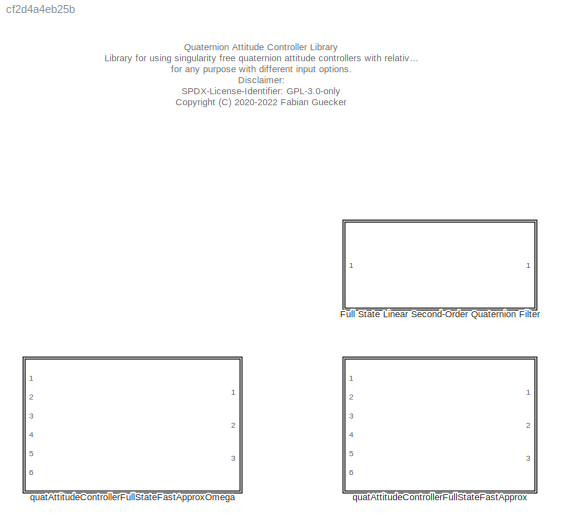
MODEL slx_cf2d4a4eb25b
KIND library
CONFIG AbsTol = auto
CONFIG EnableMultiTasking = off
CONFIG FixedStep = auto
CONFIG MaxStep = auto
CONFIG MinStep = auto
CONFIG RelTol = 1e-3
CONFIG SampleTimeConstraint = Unconstrained
CONFIG Solver = VariableStepAuto
CONFIG SolverName = VariableStepAuto
CONFIG StartTime = 0.0
CONFIG StopTime = 10.0
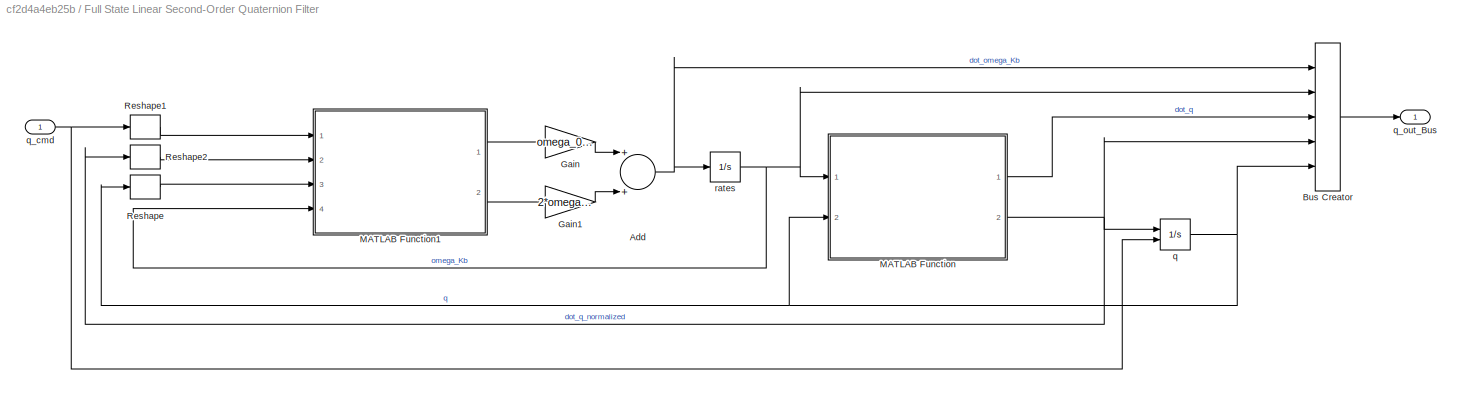
BLOCK [SubSystem] Full State Linear Second-Order Quaternion Filter
  Ports = [1, 1]
  RequestExecContextInheritance = off
BLOCK [Sum] Full State Linear Second-Order Quaternion Filter/Add
  InputSameDT = off
  OutDataTypeStr = Inherit: Inherit via internal rule
  Ports = [2, 1]
  SaturateOnIntegerOverflow = off
BLOCK [BusCreator] Full State Linear Second-Order Quaternion Filter/Bus Creator
  DisplayOption = bar
  InheritFromInputs = on
  Inputs = 5
  Ports = [5, 1]
BLOCK [Gain] Full State Linear Second-Order Quaternion Filter/Gain
  Gain = omega_0*omega_0
  OutDataTypeStr = Inherit: Inherit via internal rule
  ParamDataTypeStr = Inherit: Inherit via internal rule
  SaturateOnIntegerOverflow = off
BLOCK [Gain] Full State Linear Second-Order Quaternion Filter/Gain1
  Gain = 2*omega_0*D
  OutDataTypeStr = Inherit: Inherit via internal rule
  ParamDataTypeStr = Inherit: Inherit via internal rule
  SaturateOnIntegerOverflow = off
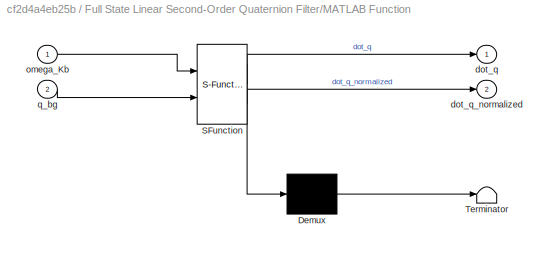
BLOCK [SubSystem] Full State Linear Second-Order Quaternion Filter/MATLAB Function
  ErrorFcn = Stateflow.Translate.translate
  PermitHierarchicalResolution = ExplicitOnly
  Ports = [2, 2]
  RequestExecContextInheritance = off
  SFBlockType = MATLAB Function
  TreatAsAtomicUnit = on
BLOCK [Demux] Full State Linear Second-Order Quaternion Filter/MATLAB Function/ Demux 
  Outputs = 1
  Ports = [1, 1]
BLOCK [S-Function] Full State Linear Second-Order Quaternion Filter/MATLAB Function/ SFunction 
  EnableBusSupport = off
  FunctionName = sf_sfun
  PortCounts = [2 3]
  Ports = [2, 3]
  SFcnIsStateOwnerBlock = off
  SFunctionDeploymentMode = off
  Tag = Stateflow S-Function quatAttitudeController_lib 8
BLOCK [Terminator] Full State Linear Second-Order Quaternion Filter/MATLAB Function/ Terminator 
BLOCK [Outport] Full State Linear Second-Order Quaternion Filter/MATLAB Function/dot_q
  IconDisplay = Port number
BLOCK [Outport] Full State Linear Second-Order Quaternion Filter/MATLAB Function/dot_q_normalized
  IconDisplay = Port number
  Port = 2
BLOCK [Inport] Full State Linear Second-Order Quaternion Filter/MATLAB Function/omega_Kb
  IconDisplay = Port number
BLOCK [Inport] Full State Linear Second-Order Quaternion Filter/MATLAB Function/q_bg
  IconDisplay = Port number
  Port = 2
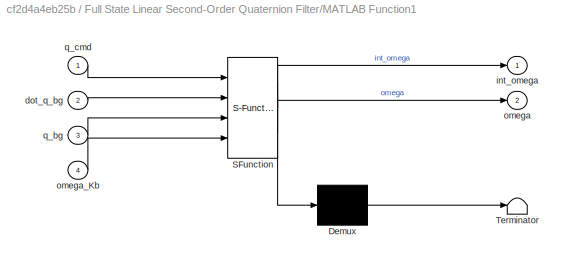
BLOCK [SubSystem] Full State Linear Second-Order Quaternion Filter/MATLAB Function1
  ErrorFcn = Stateflow.Translate.translate
  PermitHierarchicalResolution = ExplicitOnly
  Ports = [4, 2]
  RequestExecContextInheritance = off
  SFBlockType = MATLAB Function
  TreatAsAtomicUnit = on
BLOCK [Demux] Full State Linear Second-Order Quaternion Filter/MATLAB Function1/ Demux 
  Outputs = 1
  Ports = [1, 1]
BLOCK [S-Function] Full State Linear Second-Order Quaternion Filter/MATLAB Function1/ SFunction 
  EnableBusSupport = off
  FunctionName = sf_sfun
  PortCounts = [4 3]
  Ports = [4, 3]
  SFcnIsStateOwnerBlock = off
  SFunctionDeploymentMode = off
  Tag = Stateflow S-Function quatAttitudeController_lib 9
BLOCK [Terminator] Full State Linear Second-Order Quaternion Filter/MATLAB Function1/ Terminator 
BLOCK [Inport] Full State Linear Second-Order Quaternion Filter/MATLAB Function1/dot_q_bg
  IconDisplay = Port number
  Port = 2
BLOCK [Outport] Full State Linear Second-Order Quaternion Filter/MATLAB Function1/int_omega
  IconDisplay = Port number
BLOCK [Outport] Full State Linear Second-Order Quaternion Filter/MATLAB Function1/omega
  IconDisplay = Port number
  Port = 2
BLOCK [Inport] Full State Linear Second-Order Quaternion Filter/MATLAB Function1/omega_Kb
  IconDisplay = Port number
  Port = 4
BLOCK [Inport] Full State Linear Second-Order Quaternion Filter/MATLAB Function1/q_bg
  IconDisplay = Port number
  Port = 3
BLOCK [Inport] Full State Linear Second-Order Quaternion Filter/MATLAB Function1/q_cmd
  IconDisplay = Port number
BLOCK [Reshape] Full State Linear Second-Order Quaternion Filter/Reshape
  OutputDimensionality = Column vector (2-D)
  Ports = [1, 1]
BLOCK [Reshape] Full State Linear Second-Order Quaternion Filter/Reshape1
  OutputDimensionality = Column vector (2-D)
  Ports = [1, 1]
BLOCK [Reshape] Full State Linear Second-Order Quaternion Filter/Reshape2
  OutputDimensionality = Column vector (2-D)
  Ports = [1, 1]
BLOCK [Integrator] Full State Linear Second-Order Quaternion Filter/q
  ContinuousStateAttributes = 'quaternion'
  InitialCondition = q_0
  InitialConditionSource = external
  LowerSaturationLimit = [-inf;-inf;-inf]
  Ports = [2, 1]
  UpperSaturationLimit = [inf;inf;-quad.z_s]
BLOCK [Inport] Full State Linear Second-Order Quaternion Filter/q_cmd
  IconDisplay = Port number
BLOCK [Outport] Full State Linear Second-Order Quaternion Filter/q_out_Bus
  IconDisplay = Port number
BLOCK [Integrator] Full State Linear Second-Order Quaternion Filter/rates
  ContinuousStateAttributes = 'rates'
  InitialCondition = omega_Kb_0
  Ports = [1, 1]
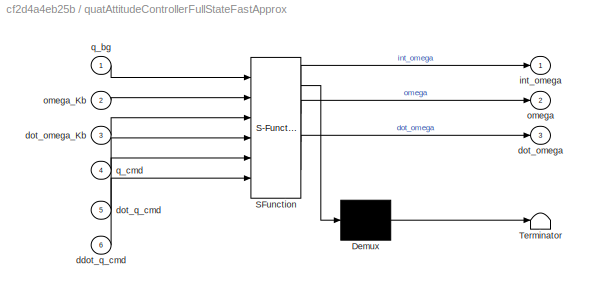
BLOCK [SubSystem] quatAttitudeControllerFullStateFastApprox
  ErrorFcn = Stateflow.Translate.translate
  PermitHierarchicalResolution = ExplicitOnly
  Ports = [6, 3]
  RequestExecContextInheritance = off
  SFBlockType = MATLAB Function
  TreatAsAtomicUnit = on
BLOCK [Demux] quatAttitudeControllerFullStateFastApprox/ Demux 
  Outputs = 1
  Ports = [1, 1]
BLOCK [S-Function] quatAttitudeControllerFullStateFastApprox/ SFunction 
  EnableBusSupport = off
  FunctionName = sf_sfun
  PortCounts = [6 4]
  Ports = [6, 4]
  SFcnIsStateOwnerBlock = off
  SFunctionDeploymentMode = off
  Tag = Stateflow S-Function quatAttitudeController_lib 6
BLOCK [Terminator] quatAttitudeControllerFullStateFastApprox/ Terminator 
BLOCK [Inport] quatAttitudeControllerFullStateFastApprox/ddot_q_cmd
  IconDisplay = Port number
  Port = 6
BLOCK [Outport] quatAttitudeControllerFullStateFastApprox/dot_omega
  IconDisplay = Port number
  Port = 3
BLOCK [Inport] quatAttitudeControllerFullStateFastApprox/dot_omega_Kb
  IconDisplay = Port number
  Port = 3
BLOCK [Inport] quatAttitudeControllerFullStateFastApprox/dot_q_cmd
  IconDisplay = Port number
  Port = 5
BLOCK [Outport] quatAttitudeControllerFullStateFastApprox/int_omega
  IconDisplay = Port number
BLOCK [Outport] quatAttitudeControllerFullStateFastApprox/omega
  IconDisplay = Port number
  Port = 2
BLOCK [Inport] quatAttitudeControllerFullStateFastApprox/omega_Kb
  IconDisplay = Port number
  Port = 2
BLOCK [Inport] quatAttitudeControllerFullStateFastApprox/q_bg
  IconDisplay = Port number
BLOCK [Inport] quatAttitudeControllerFullStateFastApprox/q_cmd
  IconDisplay = Port number
  Port = 4
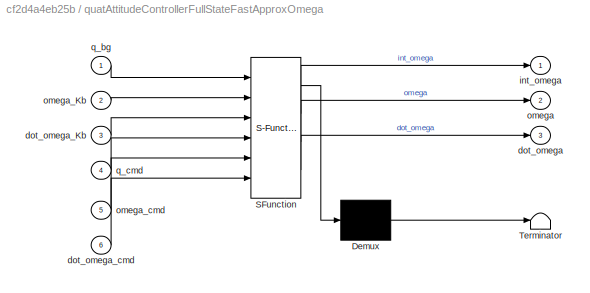
BLOCK [SubSystem] quatAttitudeControllerFullStateFastApproxOmega
  ErrorFcn = Stateflow.Translate.translate
  PermitHierarchicalResolution = ExplicitOnly
  Ports = [6, 3]
  RequestExecContextInheritance = off
  SFBlockType = MATLAB Function
  TreatAsAtomicUnit = on
BLOCK [Demux] quatAttitudeControllerFullStateFastApproxOmega/ Demux 
  Outputs = 1
  Ports = [1, 1]
BLOCK [S-Function] quatAttitudeControllerFullStateFastApproxOmega/ SFunction 
  EnableBusSupport = off
  FunctionName = sf_sfun
  PortCounts = [6 4]
  Ports = [6, 4]
  SFcnIsStateOwnerBlock = off
  SFunctionDeploymentMode = off
  Tag = Stateflow S-Function quatAttitudeController_lib 2
BLOCK [Terminator] quatAttitudeControllerFullStateFastApproxOmega/ Terminator 
BLOCK [Outport] quatAttitudeControllerFullStateFastApproxOmega/dot_omega
  IconDisplay = Port number
  Port = 3
BLOCK [Inport] quatAttitudeControllerFullStateFastApproxOmega/dot_omega_Kb
  IconDisplay = Port number
  Port = 3
BLOCK [Inport] quatAttitudeControllerFullStateFastApproxOmega/dot_omega_cmd
  IconDisplay = Port number
  Port = 6
BLOCK [Outport] quatAttitudeControllerFullStateFastApproxOmega/int_omega
  IconDisplay = Port number
BLOCK [Outport] quatAttitudeControllerFullStateFastApproxOmega/omega
  IconDisplay = Port number
  Port = 2
BLOCK [Inport] quatAttitudeControllerFullStateFastApproxOmega/omega_Kb
  IconDisplay = Port number
  Port = 2
BLOCK [Inport] quatAttitudeControllerFullStateFastApproxOmega/omega_cmd
  IconDisplay = Port number
  Port = 5
BLOCK [Inport] quatAttitudeControllerFullStateFastApproxOmega/q_bg
  IconDisplay = Port number
BLOCK [Inport] quatAttitudeControllerFullStateFastApproxOmega/q_cmd
  IconDisplay = Port number
  Port = 4
ANNOTATION (root): Quaternion Attitude Controller Library Library for using singularity free quaternion attitude controllers with relative degree two for any purpose with different input options. Disclaimer: SPDX-License-Identifier: GPL-3.0-only <copyright redacted>
NET Full State Linear Second-Order Quaternion Filter/Add:1 -> Full State Linear Second-Order Quaternion Filter/Bus Creator:1, Full State Linear Second-Order Quaternion Filter/rates:1
LINE Full State Linear Second-Order Quaternion Filter/Bus Creator:1 -> Full State Linear Second-Order Quaternion Filter/q_out_Bus:1
LINE Full State Linear Second-Order Quaternion Filter/Gain1:1 -> Full State Linear Second-Order Quaternion Filter/Add:2
LINE Full State Linear Second-Order Quaternion Filter/Gain:1 -> Full State Linear Second-Order Quaternion Filter/Add:1
LINE Full State Linear Second-Order Quaternion Filter/MATLAB Function1:1 -> Full State Linear Second-Order Quaternion Filter/Gain:1
LINE Full State Linear Second-Order Quaternion Filter/MATLAB Function1:2 -> Full State Linear Second-Order Quaternion Filter/Gain1:1
LINE Full State Linear Second-Order Quaternion Filter/MATLAB Function:1 -> Full State Linear Second-Order Quaternion Filter/Bus Creator:3
NET Full State Linear Second-Order Quaternion Filter/MATLAB Function:2 -> Full State Linear Second-Order Quaternion Filter/Bus Creator:4, Full State Linear Second-Order Quaternion Filter/Reshape2:1, Full State Linear Second-Order Quaternion Filter/q:1
LINE Full State Linear Second-Order Quaternion Filter/Reshape1:1 -> Full State Linear Second-Order Quaternion Filter/MATLAB Function1:1
LINE Full State Linear Second-Order Quaternion Filter/Reshape2:1 -> Full State Linear Second-Order Quaternion Filter/MATLAB Function1:2
LINE Full State Linear Second-Order Quaternion Filter/Reshape:1 -> Full State Linear Second-Order Quaternion Filter/MATLAB Function1:3
NET Full State Linear Second-Order Quaternion Filter/q:1 -> Full State Linear Second-Order Quaternion Filter/Bus Creator:5, Full State Linear Second-Order Quaternion Filter/MATLAB Function:2, Full State Linear Second-Order Quaternion Filter/Reshape:1
NET Full State Linear Second-Order Quaternion Filter/q_cmd:1 -> Full State Linear Second-Order Quaternion Filter/Reshape1:1, Full State Linear Second-Order Quaternion Filter/q:2
NET Full State Linear Second-Order Quaternion Filter/rates:1 -> Full State Linear Second-Order Quaternion Filter/Bus Creator:2, Full State Linear Second-Order Quaternion Filter/MATLAB Function1:4, Full State Linear Second-Order Quaternion Filter/MATLAB Function:1
note: NET lines group one-source signal fan-out (src -> all destinations, sorted); 1:1 wires keep LINE
CHART quatAttitudeControllerFullStateFastApproxOmega states=1 transitions=1
  STATE_LABEL 'eML_blk_kernel()'
  STATE_LABEL 'SCRIPT:\nfunction [int_omega, omega, dot_omega] = fcn...\n    (q_bg, omega_Kb, dot_omega_Kb, q_cmd, omega_cmd, dot_omega_cmd)\n\n[int_omega, omega, dot_omega] = quatAttitudeControllerFullStateFastApproxOmega...\n    (q_bg, omega_Kb, dot_omega_Kb, q_cmd, omega_cmd, dot_omega_cmd);\n\nend'
CHART quatAttitudeControllerFullStateFastApprox states=1 transitions=1
  STATE_LABEL 'eML_blk_kernel()'
  STATE_LABEL 'SCRIPT:\nfunction [int_omega, omega, dot_omega] = fcn...\n    (q_bg, omega_Kb, dot_omega_Kb, q_cmd, dot_q_cmd, ddot_q_cmd)\n\n[int_omega, omega, dot_omega] = quatAttitudeControllerFullStateFastApprox...\n    (q_bg, omega_Kb, dot_omega_Kb, q_cmd, dot_q_cmd, ddot_q_cmd);\n\nend'
CHART Full State Linear Second-Order Quaternion Filter/MATLAB Function states=1 transitions=1
  STATE_LABEL 'eML_blk_kernel()'
  STATE_LABEL 'SCRIPT:\nfunction [dot_q, dot_q_normalized]   = ...\n    rigidBodyKinematicsQuat( omega_Kb, q_bg )%#codegen\n\n% compute the omega cross product matrix according to [1, page 8]\nomega_cross_product = [ 0, omega_Kb(3), -omega_Kb(2); ...\n                        -omega_Kb(3), 0, omega_Kb(1); ...\n                        omega_Kb(2), -omega_Kb(1), 0 ];\n\n% normalize quaternion\nq_bg_norm = quatNormalize( q_bg...<+378ch>'
CHART Full State Linear Second-Order Quaternion Filter/MATLAB Function1 states=1 transitions=1
  STATE_LABEL 'eML_blk_kernel()'
  STATE_LABEL 'SCRIPT:\nfunction [int_omega, omega] = quatAttitudeFilter...\n    (q_cmd, dot_q_bg, q_bg, omega_Kb)\n\n[int_omega, omega] = quatAttitudeFilter...\n    (q_bg, dot_q_bg, q_cmd, omega_Kb);\n\nend\n'
